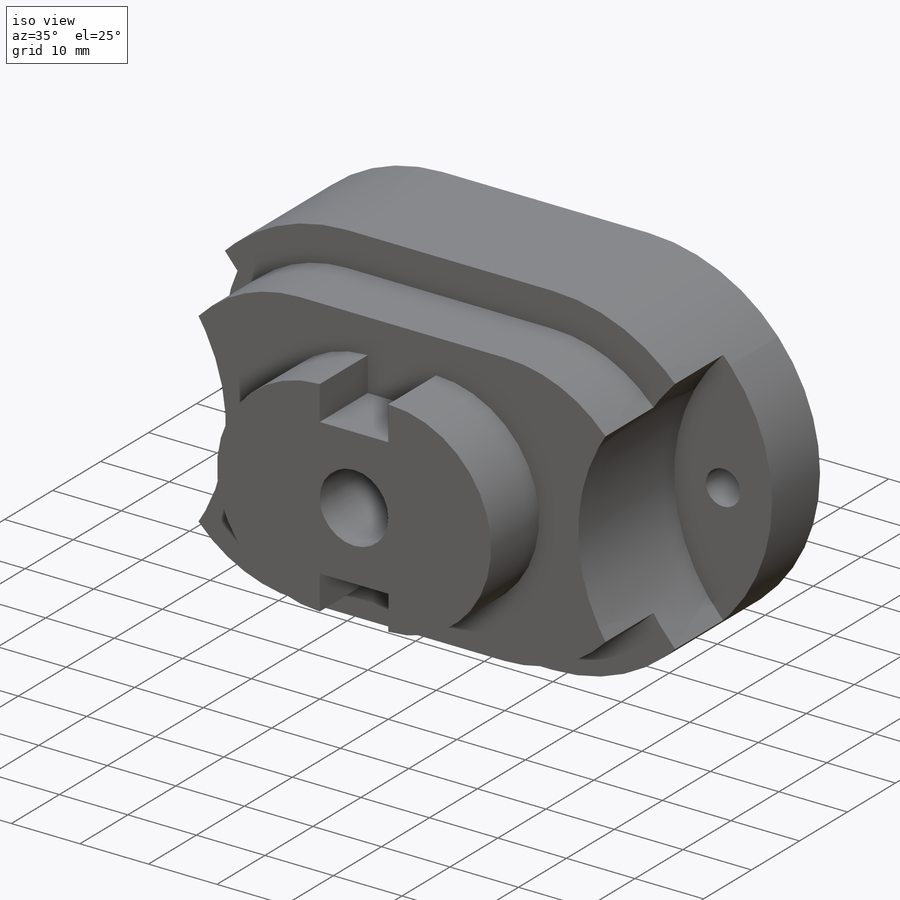
[diagram: iso view]
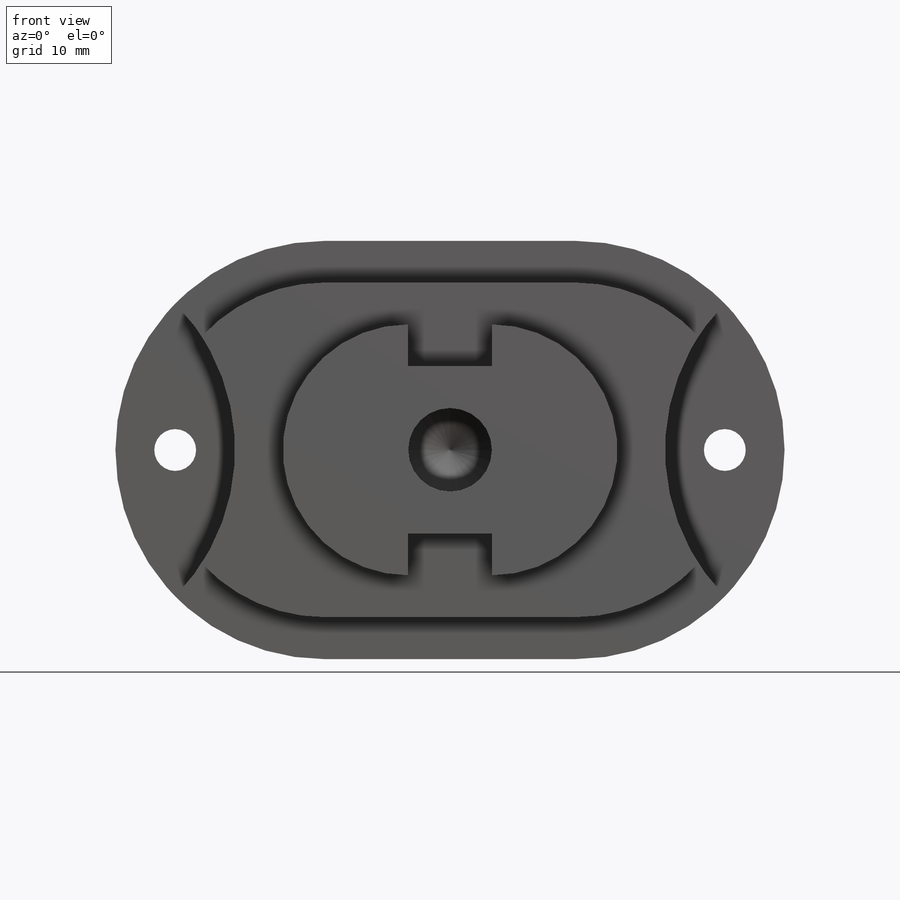
[diagram: front view]
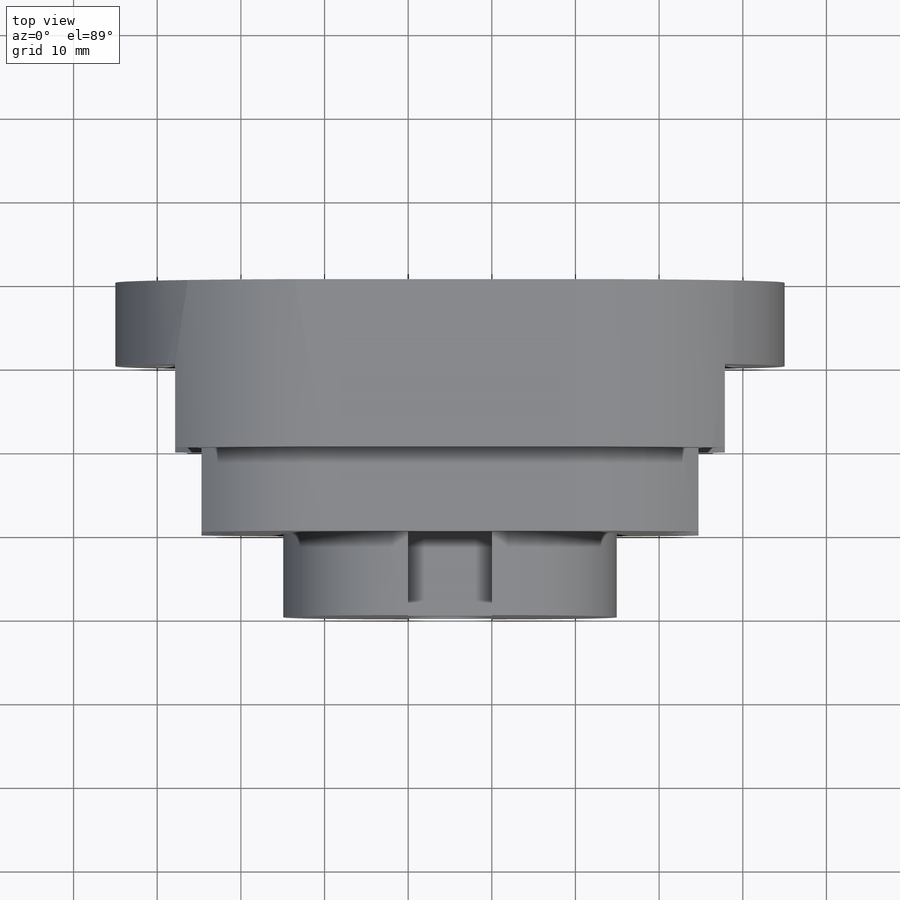
[diagram: top view]
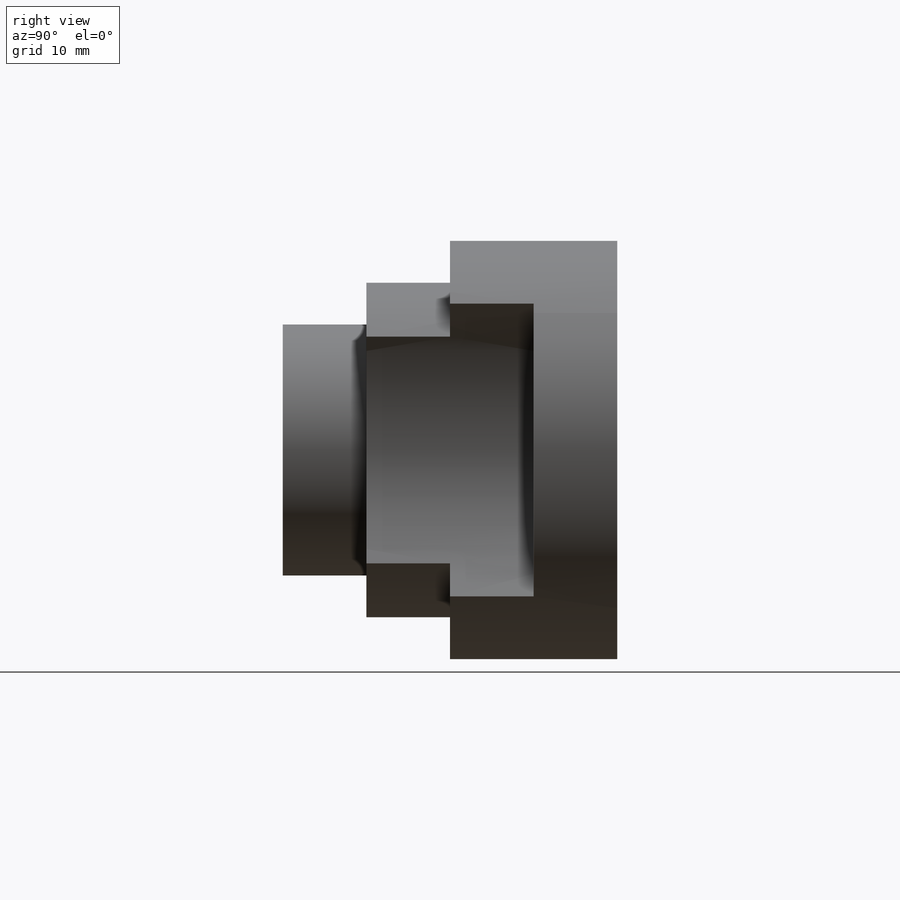
[diagram: right view]
SOLIDWORKS PART (.sldprt)
format: sldprt  version: not decoded by parser v0  size: 329,216 bytes
history: native  units: mm
features: sketch x10, cut_extrude x4, extrude x3, material x1, hole x1 (+13 scaffold rows collapsed)
feature tree (32):
  scaffold x13  (default folders/planes/origin — collapsed)
  material  "Material <not specified>"
  sketch  "Sketch1"  dims[D2=25.0mm D1=30.0mm]
  extrude  "Boss-Extrude1"  Depth=20mm
  sketch  "Sketch2"  dims[c1.D1=20.0mm c1.D2=20.0mm c2.D1=~25.12845mm c2.D3=25.0mm c2.D4=~18.902948mm c2.D5=~18.902948mm c3.D4=25.0mm c3.D6=25.0mm c3.D7=25.0mm c3.D1=30.0mm c3.D2=5.0mm c4.D1=~12.496229mm c4.D2=~3.347188mm c5.D1=7.5mm c5.D2=7.5mm c5.D3=~17.853571mm c5.D4=7.5mm c5.D5=7.5mm c5.D7=~9.14636mm]
  cut_extrude  "Cut-Extrude10"  Depth=10mm
  sketch  "Sketch9"  dims[D1=25.0mm D2=35.0mm]
  cut_extrude  "Cut-Extrude11"  Depth=10mm
  sketch  "Sketch10"  dims[D1=5.0mm D2=5.0mm]
  extrude  "Boss-Extrude4"  Depth=10mm
  sketch  "Sketch11"  dims[c1.D1=20.0mm c1.D2=20.0mm c2.D1=35.0mm c2.D3=~6.441846mm c2.D4=~14.702941mm c2.D5=~14.702941mm c2.D6=~6.441846mm c3.D1=35.0mm]
  cut_extrude  "Cut-Extrude16"  Depth=20mm
  sketch  "Sketch14"  dims[c1.D10=15.0mm c1.D11=15.0mm c1.D1=5.0mm c1.D2=20.0mm c1.D3=10.0mm c1.D4=5.0mm c1.D5=5.0mm c1.D6=20.0mm c1.D7=5.0mm c1.D8=5.0mm c1.D9=10.0mm c2.D6=20.0mm c2.D9=5.0mm]
  extrude  "Boss-Extrude6"  Depth=10mm
  sketch  "Sketch15"  dims[D1=5.0mm D2=5.0mm D3=17.5mm D4=17.5mm]
  cut_extrude  "Cut-Extrude17"  Depth=33mm
  sketch  "Sketch16"  dims[D1=10.0mm D2=10.0mm D3=5.0mm]
  hole  "Ø1.2 (1.2) Diameter Hole2"  Diameter=10mm Depth=20mm
  sketch  "3DSketch2"
  sketch  "Sketch18"  dims[hole-wizard template sketch: 47 standard entries collapsed; hole parameters kept: c15.Hole Depth=20.0mm c15.D3=~14.816244mm c15.Drill Angle=123.0deg]
decode coverage: 17 of 18 modeling features carry decoded parameters
note: ~ marks probable driven/reference dimensions
note: suppression state not decoded; provenance and decode notes live in map.json
